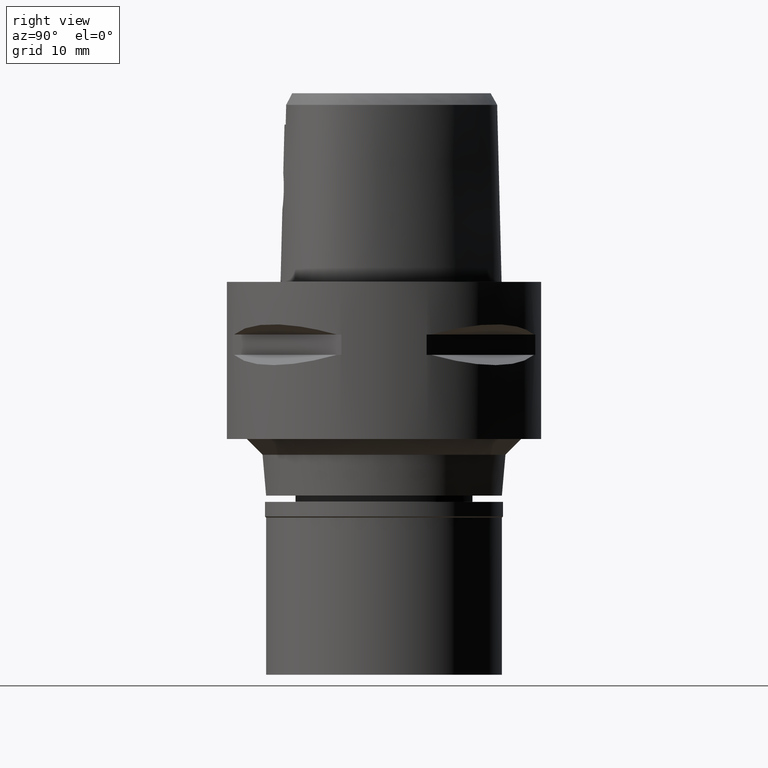
[diagram: clean part render]
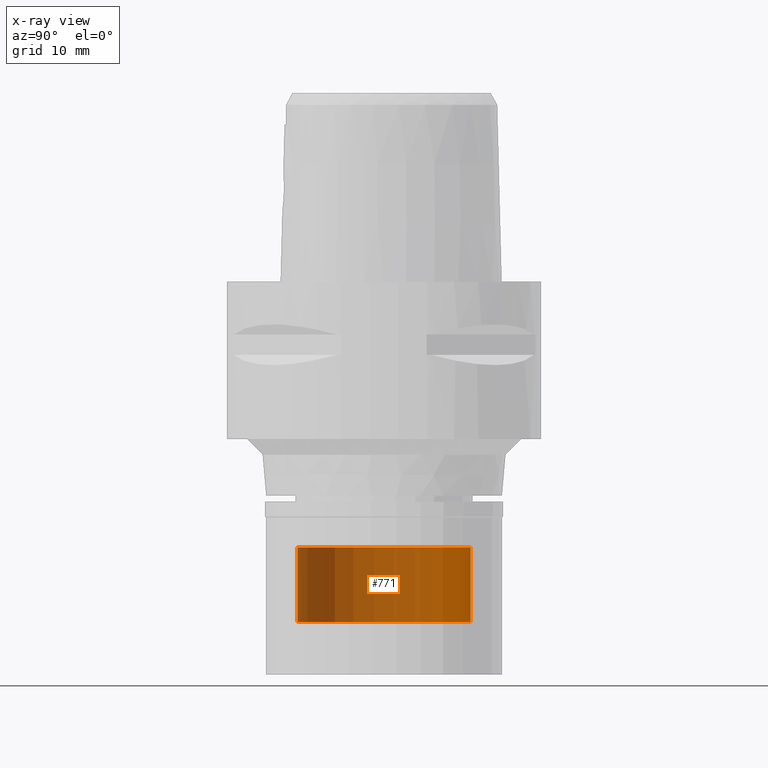
[diagram: x-ray — body ghosted, one internal face saturated and labeled with its STEP entity id]
A machine part, right view, then the same camera in x-ray: the body is ghosted and one INTERNAL B-rep face — a face not visible from any outside direction — is saturated and labeled: STEP entity #771.
In plain terms, the highlighted cylindrical surface (partial cylindrical patch) has radius 11 mm, axis along (0, 0, -1).
Its self-contained STEP definition (entity closure, byte-faithful):
#12 = FACE_OUTER_BOUND ( 'NONE', #1577, .T. ) ;
#145 = CARTESIAN_POINT ( 'NONE',  ( 0.0000000000000000000, -11.00000000000000000, -43.29999999999999716 ) ) ;
#243 = CARTESIAN_POINT ( 'NONE',  ( 0.0000000000000000000, 1.251160402349000119E-14, -33.79999999999999716 ) ) ;
#281 = CARTESIAN_POINT ( 'NONE',  ( 0.0000000000000000000, -11.00000000000000000, -33.79999999999999716 ) ) ;
#303 = VECTOR ( 'NONE', #1917, 1000.000000000000000 ) ;
#565 = VERTEX_POINT ( 'NONE', #1636 ) ;
#591 = AXIS2_PLACEMENT_3D ( 'NONE', #1148, #3686, #722 ) ;
#705 = CARTESIAN_POINT ( 'NONE',  ( 0.0000000000000000000, 1.251160402349000119E-14, 2.165000000000000036 ) ) ;
#722 = DIRECTION ( 'NONE',  ( 0.0000000000000000000, 1.000000000000000000, 0.0000000000000000000 ) ) ;
#771 = ADVANCED_FACE ( 'NONE', ( #12 ), #3622, .T. ) ;
#1148 = CARTESIAN_POINT ( 'NONE',  ( 0.0000000000000000000, 1.251160402349000119E-14, -43.29999999999999716 ) ) ;
#1344 = ORIENTED_EDGE ( 'NONE', *, *, #2526, .T. ) ;
#1391 = DIRECTION ( 'NONE',  ( 0.0000000000000000000, -1.000000000000000000, 0.0000000000000000000 ) ) ;
#1517 = EDGE_CURVE ( 'NONE', #3226, #2050, #2833, .T. ) ;
#1577 = EDGE_LOOP ( 'NONE', ( #1344, #3351, #4176, #2769 ) ) ;
#1636 = CARTESIAN_POINT ( 'NONE',  ( 0.0000000000000000000, 11.00000000000000000, -43.29999999999999716 ) ) ;
#1661 = CIRCLE ( 'NONE', #2185, 11.00000000000000000 ) ;
#1917 = DIRECTION ( 'NONE',  ( 0.0000000000000000000, 0.0000000000000000000, -1.000000000000000000 ) ) ;
#2050 = VERTEX_POINT ( 'NONE', #145 ) ;
#2185 = AXIS2_PLACEMENT_3D ( 'NONE', #243, #2739, #1391 ) ;
#2211 = DIRECTION ( 'NONE',  ( 0.0000000000000000000, -1.000000000000000000, 0.0000000000000000000 ) ) ;
#2320 = VECTOR ( 'NONE', #4314, 1000.000000000000000 ) ;
#2526 = EDGE_CURVE ( 'NONE', #565, #2050, #4337, .T. ) ;
#2587 = CARTESIAN_POINT ( 'NONE',  ( 0.0000000000000000000, -11.00000000000000000, -33.79999999999999716 ) ) ;
#2651 = CARTESIAN_POINT ( 'NONE',  ( 0.0000000000000000000, 11.00000000000000000, -33.79999999999999716 ) ) ;
#2739 = DIRECTION ( 'NONE',  ( 0.0000000000000000000, 0.0000000000000000000, -1.000000000000000000 ) ) ;
#2769 = ORIENTED_EDGE ( 'NONE', *, *, #3908, .T. ) ;
#2833 = LINE ( 'NONE', #281, #2320 ) ;
#2900 = DIRECTION ( 'NONE',  ( 0.0000000000000000000, 0.0000000000000000000, -1.000000000000000000 ) ) ;
#3028 = EDGE_CURVE ( 'NONE', #3226, #4425, #1661, .T. ) ;
#3226 = VERTEX_POINT ( 'NONE', #2587 ) ;
#3351 = ORIENTED_EDGE ( 'NONE', *, *, #1517, .F. ) ;
#3403 = LINE ( 'NONE', #2651, #303 ) ;
#3622 = CYLINDRICAL_SURFACE ( 'NONE', #4627, 11.00000000000000000 ) ;
#3686 = DIRECTION ( 'NONE',  ( 0.0000000000000000000, 0.0000000000000000000, 1.000000000000000000 ) ) ;
#3908 = EDGE_CURVE ( 'NONE', #4425, #565, #3403, .T. ) ;
#4092 = CARTESIAN_POINT ( 'NONE',  ( 0.0000000000000000000, 11.00000000000000000, -33.79999999999999716 ) ) ;
#4176 = ORIENTED_EDGE ( 'NONE', *, *, #3028, .T. ) ;
#4314 = DIRECTION ( 'NONE',  ( 0.0000000000000000000, 0.0000000000000000000, -1.000000000000000000 ) ) ;
#4337 = CIRCLE ( 'NONE', #591, 11.00000000000000000 ) ;
#4425 = VERTEX_POINT ( 'NONE', #4092 ) ;
#4627 = AXIS2_PLACEMENT_3D ( 'NONE', #705, #2900, #2211 ) ;